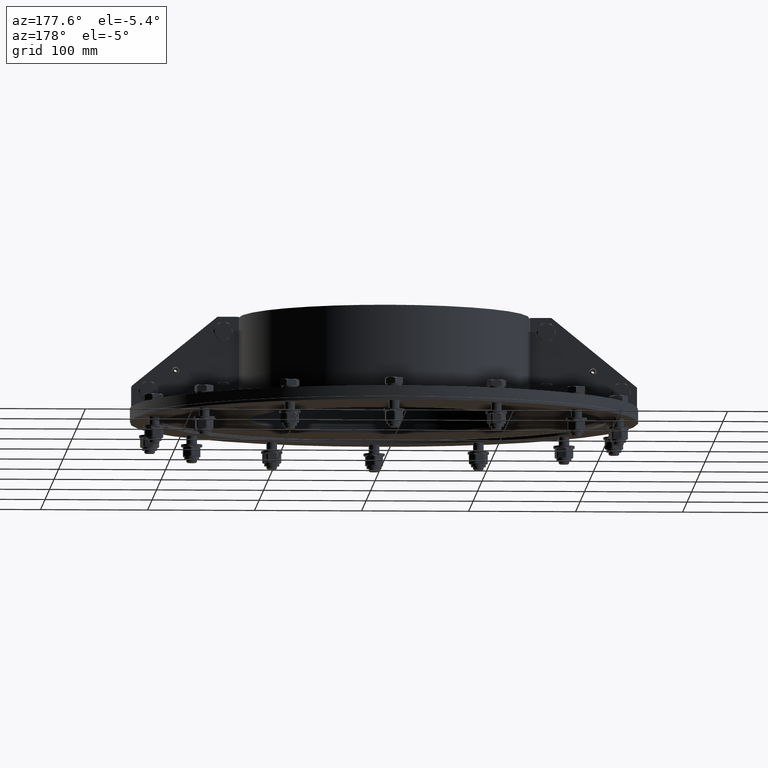
[diagram: clean part render]
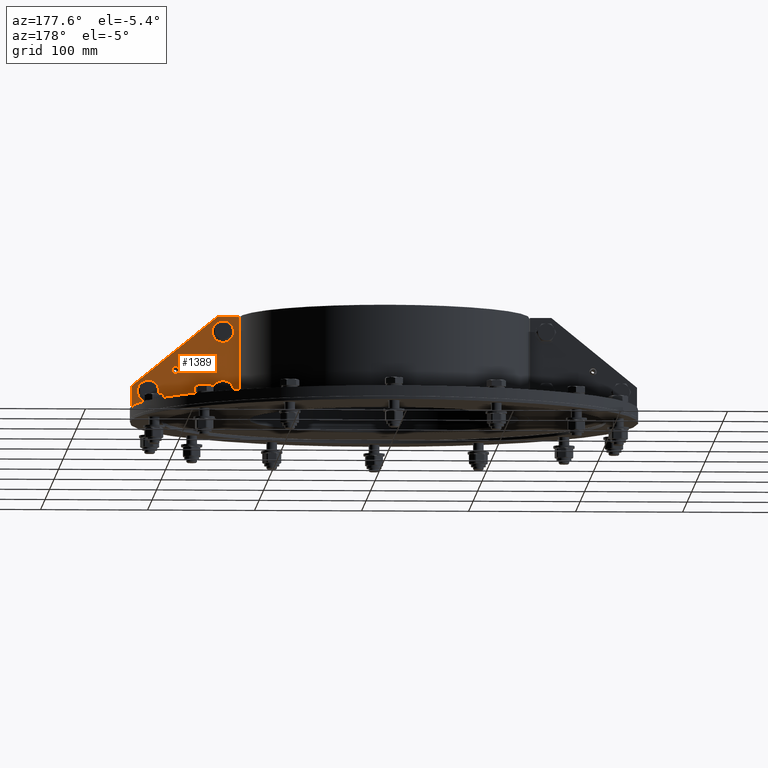
[diagram: same view with one face highlighted and labeled with its STEP entity id]
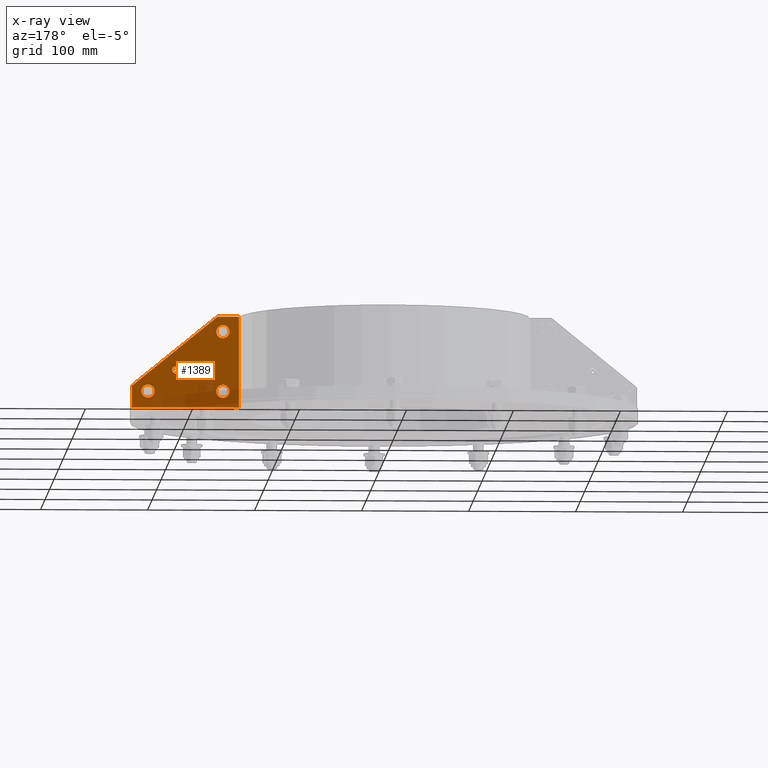
[diagram: x-ray of the same camera — body ghosted, the highlighted face saturated]
A machine part, auxiliary view. The second image highlights one B-rep face of the part: STEP entity #1389.
The next image is the same camera in x-ray: the body ghosted, the highlighted face saturated — about 20% of this face is hidden behind the body in this view.
In plain terms, the highlighted planar face has unit normal (0, -1, -0).
Its self-contained STEP definition (entity closure, byte-faithful):
#1223=CARTESIAN_POINT('',(21.150000000000002,71.0,-5.0));
#1224=VERTEX_POINT('',#1223);
#1225=CARTESIAN_POINT('',(15.0,71.0,-5.0));
#1226=DIRECTION('',(0.0,0.0,1.0));
#1227=DIRECTION('',(-1.0,0.0,0.0));
#1228=AXIS2_PLACEMENT_3D('',#1225,#1226,#1227);
#1229=CIRCLE('',#1228,6.150000000000001);
#1230=EDGE_CURVE('',#1224,#1224,#1229,.T.);
#1251=CARTESIAN_POINT('',(91.150000000000006,15.000000000000002,-5.0));
#1252=VERTEX_POINT('',#1251);
#1253=CARTESIAN_POINT('',(85.0,15.000000000000002,-5.0));
#1254=DIRECTION('',(0.0,0.0,1.0));
#1255=DIRECTION('',(-1.0,0.0,0.0));
#1256=AXIS2_PLACEMENT_3D('',#1253,#1254,#1255);
#1257=CIRCLE('',#1256,6.150000000000001);
#1258=EDGE_CURVE('',#1252,#1252,#1257,.T.);
#1279=CARTESIAN_POINT('',(21.150000000000002,15.000000000000002,-5.0));
#1280=VERTEX_POINT('',#1279);
#1281=CARTESIAN_POINT('',(15.0,15.000000000000002,-5.0));
#1282=DIRECTION('',(0.0,0.0,1.0));
#1283=DIRECTION('',(-1.0,0.0,0.0));
#1284=AXIS2_PLACEMENT_3D('',#1281,#1282,#1283);
#1285=CIRCLE('',#1284,6.150000000000001);
#1286=EDGE_CURVE('',#1280,#1280,#1285,.T.);
#1307=CARTESIAN_POINT('',(62.350000000000001,35.0,-5.0));
#1308=VERTEX_POINT('',#1307);
#1309=CARTESIAN_POINT('',(59.0,35.0,-5.0));
#1310=DIRECTION('',(0.0,0.0,1.0));
#1311=DIRECTION('',(-1.0,0.0,0.0));
#1312=AXIS2_PLACEMENT_3D('',#1309,#1310,#1311);
#1313=CIRCLE('',#1312,3.35);
#1314=EDGE_CURVE('',#1308,#1308,#1313,.T.);
#1330=CARTESIAN_POINT('',(40.797228400869528,33.297228400869542,-5.0));
#1331=DIRECTION('',(0.0,0.0,1.0));
#1332=DIRECTION('',(1.0,0.0,0.0));
#1333=AXIS2_PLACEMENT_3D('',#1330,#1331,#1332);
#1334=PLANE('',#1333);
#1335=CARTESIAN_POINT('',(0.0,0.0,-5.0));
#1336=VERTEX_POINT('',#1335);
#1337=CARTESIAN_POINT('',(100.0,1.836970E-014,-5.0));
#1338=VERTEX_POINT('',#1337);
#1339=CARTESIAN_POINT('',(0.0,0.0,-5.0));
#1340=DIRECTION('',(1.0,0.0,0.0));
#1341=VECTOR('',#1340,100.0);
#1342=LINE('',#1339,#1341);
#1343=EDGE_CURVE('',#1336,#1338,#1342,.T.);
#1344=ORIENTED_EDGE('',*,*,#1343,.F.);
#1345=CARTESIAN_POINT('',(0.0,85.0,-5.0));
#1346=VERTEX_POINT('',#1345);
#1347=CARTESIAN_POINT('',(0.0,85.0,-5.0));
#1348=DIRECTION('',(0.0,-1.0,0.0));
#1349=VECTOR('',#1348,85.0);
#1350=LINE('',#1347,#1349);
#1351=EDGE_CURVE('',#1346,#1336,#1350,.T.);
#1352=ORIENTED_EDGE('',*,*,#1351,.F.);
#1353=CARTESIAN_POINT('',(20.0,85.0,-5.0));
#1354=VERTEX_POINT('',#1353);
#1355=CARTESIAN_POINT('',(20.0,85.0,-5.0));
#1356=DIRECTION('',(-1.0,0.0,0.0));
#1357=VECTOR('',#1356,20.0);
#1358=LINE('',#1355,#1357);
#1359=EDGE_CURVE('',#1354,#1346,#1358,.T.);
#1360=ORIENTED_EDGE('',*,*,#1359,.F.);
#1361=CARTESIAN_POINT('',(100.0,20.000000000000018,-5.0));
#1362=VERTEX_POINT('',#1361);
#1363=CARTESIAN_POINT('',(100.0,20.000000000000014,-5.0));
#1364=DIRECTION('',(-0.776114000116266,0.630592625094466,0.0));
#1365=VECTOR('',#1364,103.0776406404415);
#1366=LINE('',#1363,#1365);
#1367=EDGE_CURVE('',#1362,#1354,#1366,.T.);
#1368=ORIENTED_EDGE('',*,*,#1367,.F.);
#1369=CARTESIAN_POINT('',(100.0,1.776357E-014,-5.0));
#1370=DIRECTION('',(0.0,1.0,0.0));
#1371=VECTOR('',#1370,20.0);
#1372=LINE('',#1369,#1371);
#1373=EDGE_CURVE('',#1338,#1362,#1372,.T.);
#1374=ORIENTED_EDGE('',*,*,#1373,.F.);
#1375=EDGE_LOOP('',(#1344,#1352,#1360,#1368,#1374));
#1376=FACE_OUTER_BOUND('',#1375,.T.);
#1377=ORIENTED_EDGE('',*,*,#1230,.T.);
#1378=EDGE_LOOP('',(#1377));
#1379=FACE_BOUND('',#1378,.T.);
#1380=ORIENTED_EDGE('',*,*,#1258,.T.);
#1381=EDGE_LOOP('',(#1380));
#1382=FACE_BOUND('',#1381,.T.);
#1383=ORIENTED_EDGE('',*,*,#1286,.T.);
#1384=EDGE_LOOP('',(#1383));
#1385=FACE_BOUND('',#1384,.T.);
#1386=ORIENTED_EDGE('',*,*,#1314,.T.);
#1387=EDGE_LOOP('',(#1386));
#1388=FACE_BOUND('',#1387,.T.);
#1389=ADVANCED_FACE('',(#1376,#1379,#1382,#1385,#1388),#1334,.F.);